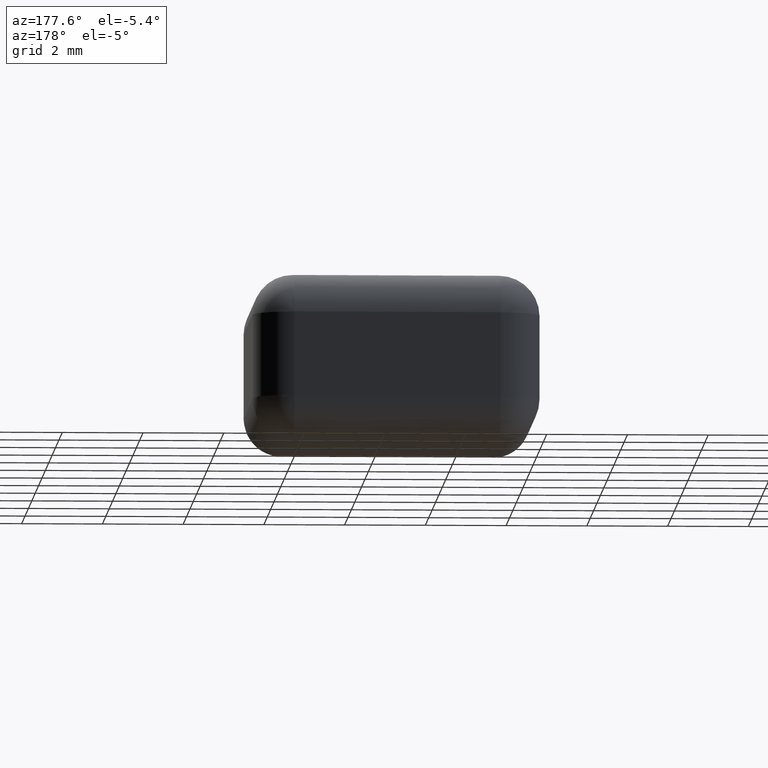
[diagram: clean part render]
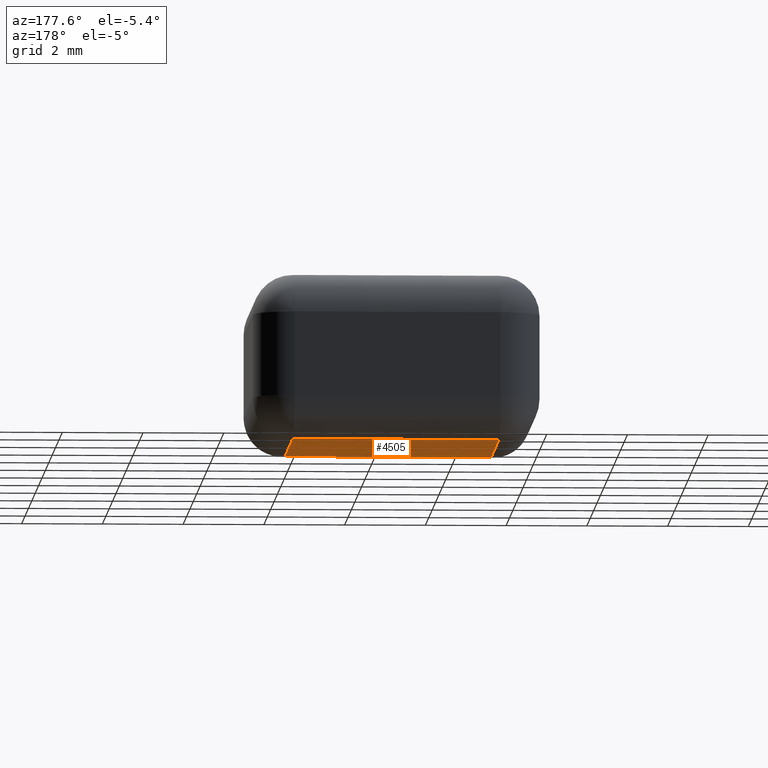
[diagram: same view with one face highlighted and labeled with its STEP entity id]
A machine part, auxiliary view. The second image highlights one B-rep face of the part: STEP entity #4505.
In plain terms, the highlighted planar face has unit normal (0, 0, -1).
Its self-contained STEP definition (entity closure, byte-faithful):
#1 = EDGE_LOOP ( 'NONE', ( #5304, #5964, #3245, #2592 ) ) ;
#87 = CARTESIAN_POINT ( 'NONE',  ( 6.110000000000000300, 5.733170000000000300, 0.0000000000000000000 ) ) ;
#246 = CARTESIAN_POINT ( 'NONE',  ( 6.110000000000000300, 0.5000000000000000000, 0.0000000000000000000 ) ) ;
#259 = VECTOR ( 'NONE', #6545, 1000.000000000000000 ) ;
#558 = CARTESIAN_POINT ( 'NONE',  ( 0.5000000000000000000, 1.000000000000000000, 0.0000000000000000000 ) ) ;
#583 = DIRECTION ( 'NONE',  ( -1.000000000000000000, -0.0000000000000000000, -0.0000000000000000000 ) ) ;
#837 = EDGE_CURVE ( 'NONE', #3480, #1908, #6152, .T. ) ;
#1380 = DIRECTION ( 'NONE',  ( -1.000000000000000000, 0.0000000000000000000, -0.0000000000000000000 ) ) ;
#1509 = VERTEX_POINT ( 'NONE', #5656 ) ;
#1830 = DIRECTION ( 'NONE',  ( 0.0000000000000000000, -1.000000000000000000, -0.0000000000000000000 ) ) ;
#1836 = VERTEX_POINT ( 'NONE', #4415 ) ;
#1908 = VERTEX_POINT ( 'NONE', #4937 ) ;
#2033 = CARTESIAN_POINT ( 'NONE',  ( 1.000000000000000000, 5.733170000000000300, 0.0000000000000000000 ) ) ;
#2076 = EDGE_CURVE ( 'NONE', #1908, #1509, #6592, .T. ) ;
#2592 = ORIENTED_EDGE ( 'NONE', *, *, #5415, .T. ) ;
#2656 = AXIS2_PLACEMENT_3D ( 'NONE', #4492, #3956, #1380 ) ;
#3245 = ORIENTED_EDGE ( 'NONE', *, *, #2076, .T. ) ;
#3345 = VECTOR ( 'NONE', #1830, 1000.000000000000000 ) ;
#3480 = VERTEX_POINT ( 'NONE', #87 ) ;
#3500 = CARTESIAN_POINT ( 'NONE',  ( 6.110000000000000300, 5.733170000000000300, 0.0000000000000000000 ) ) ;
#3524 = VECTOR ( 'NONE', #3564, 1000.000000000000000 ) ;
#3564 = DIRECTION ( 'NONE',  ( -0.0000000000000000000, 1.000000000000000000, -0.0000000000000000000 ) ) ;
#3681 = VECTOR ( 'NONE', #583, 1000.000000000000000 ) ;
#3932 = PLANE ( 'NONE',  #2656 ) ;
#3956 = DIRECTION ( 'NONE',  ( 0.0000000000000000000, 0.0000000000000000000, -1.000000000000000000 ) ) ;
#4128 = FACE_OUTER_BOUND ( 'NONE', #1, .T. ) ;
#4415 = CARTESIAN_POINT ( 'NONE',  ( 1.000000000000000000, 5.733170000000000300, 0.0000000000000000000 ) ) ;
#4492 = CARTESIAN_POINT ( 'NONE',  ( 0.0000000000000000000, 0.0000000000000000000, 0.0000000000000000000 ) ) ;
#4505 = ADVANCED_FACE ( 'NONE', ( #4128 ), #3932, .T. ) ;
#4937 = CARTESIAN_POINT ( 'NONE',  ( 6.110000000000001200, 1.000000000000000000, 0.0000000000000000000 ) ) ;
#5052 = LINE ( 'NONE', #2033, #3524 ) ;
#5304 = ORIENTED_EDGE ( 'NONE', *, *, #6639, .T. ) ;
#5415 = EDGE_CURVE ( 'NONE', #1509, #1836, #5052, .T. ) ;
#5656 = CARTESIAN_POINT ( 'NONE',  ( 1.000000000000000000, 1.000000000000000000, 0.0000000000000000000 ) ) ;
#5964 = ORIENTED_EDGE ( 'NONE', *, *, #837, .T. ) ;
#6001 = LINE ( 'NONE', #3500, #259 ) ;
#6152 = LINE ( 'NONE', #246, #3345 ) ;
#6545 = DIRECTION ( 'NONE',  ( 1.000000000000000000, -0.0000000000000000000, -0.0000000000000000000 ) ) ;
#6592 = LINE ( 'NONE', #558, #3681 ) ;
#6639 = EDGE_CURVE ( 'NONE', #1836, #3480, #6001, .T. ) ;